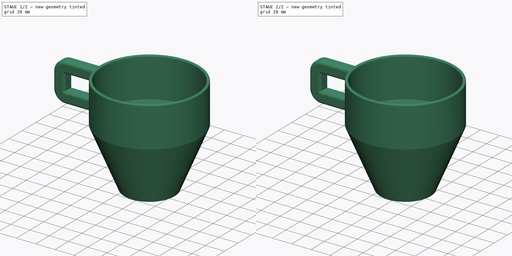
[diagram: build sequence overview — one tinted view per stage of 2, left to right]
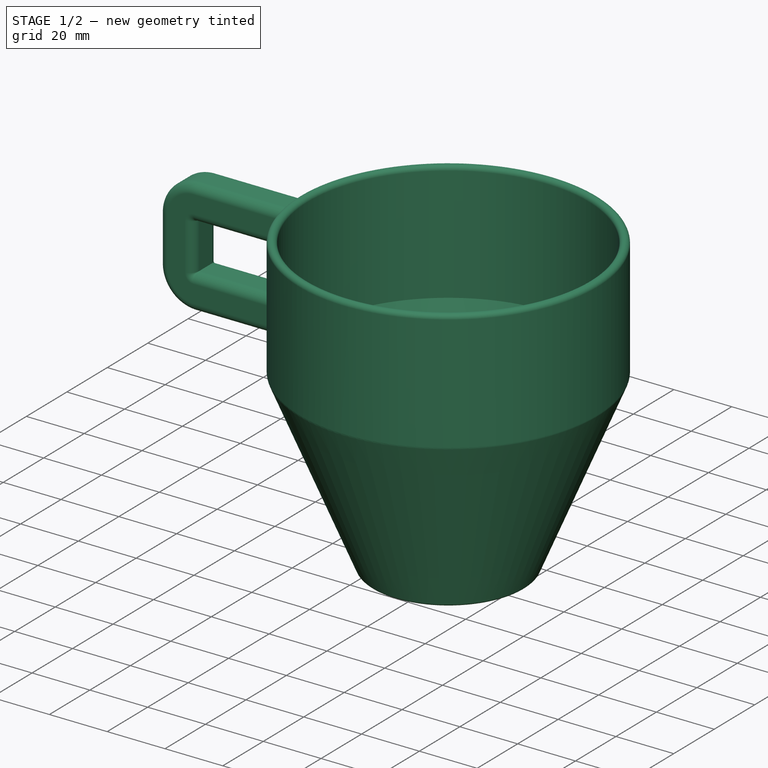
[diagram: stage 1 of 2 — iso view after this stage's code; geometry added in this stage tinted green]
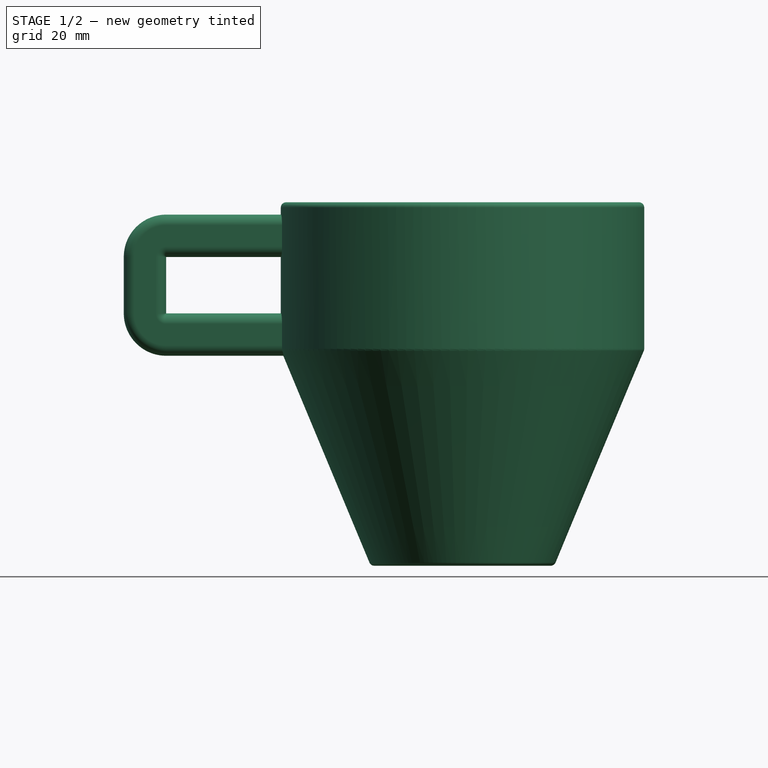
[diagram: stage 1 of 2 — front view after this stage's code; geometry added in this stage tinted green]
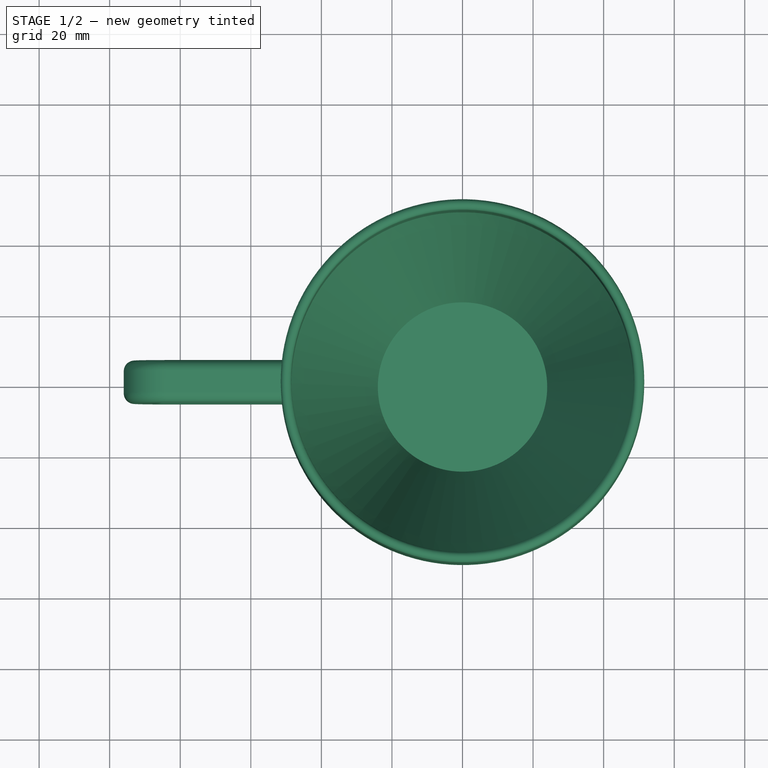
[diagram: stage 1 of 2 — top view after this stage's code; geometry added in this stage tinted green]
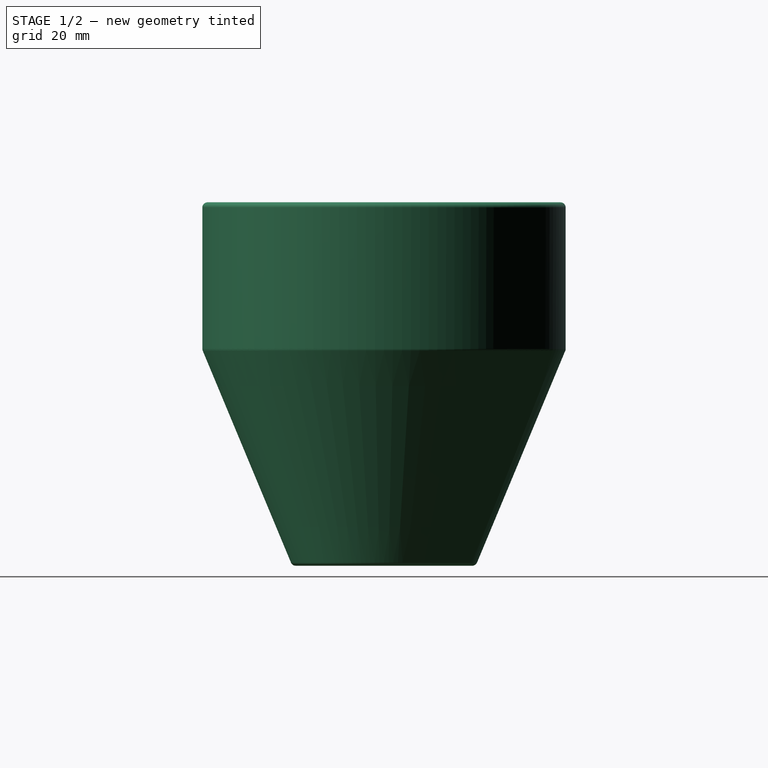
[diagram: stage 1 of 2 — right view after this stage's code; geometry added in this stage tinted green]
FCSTD DOCUMENT  (FreeCAD 1.2R20251216 (Git shallow))
Label: lesson12
License: All rights reserved
objects: Sketcher::SketchObject×3, App::Point×1, PartDesign::Revolution×1, PartDesign::AdditivePipe×1, PartDesign::Fillet×1, PartDesign::Body×1
note: 16 computed .brp shape members not serialized (recipe doc carries the construction recipe); baked Part::Feature solids carry a one-line shape summary decoded from their .brp

FEATURE [App::Point] Origin001
  Role = Origin
FEATURE [Sketcher::SketchObject] Sketch
  ArcFitTolerance = 1e-06
  AttachmentSupport = -> [Origin]
  ExternalTypes = [0]
  FullyConstrained = false
  MakeInternals = false
  MapMode = 5
  Placement = pos=(0,0,0) rot=(1,0,0;1.5708rad)
  sketch-geometry (15):
    g0: LineSegment [constr] StartX=0 StartY=1.5 StartZ=0 EndX=-25 EndY=1.5 EndZ=0
    g1: LineSegment [constr] StartX=-25 StartY=1.5 StartZ=0 EndX=-50 EndY=61.5 EndZ=0
    g2: LineSegment [constr] StartX=-50 StartY=61.5 StartZ=0 EndX=-50 EndY=101.5 EndZ=0
    g3: ArcOfCircle CenterX=-50 CenterY=101.5 CenterZ=0 NormalX=0 NormalY=0 NormalZ=1 AngleXU=-1.5708 Radius=1.5 StartAngle=1.5708 EndAngle=4.71239
    g4: LineSegment StartX=-48.5 StartY=61.8 StartZ=0 EndX=-48.5 EndY=101.5 EndZ=0
    g5: LineSegment StartX=-24 StartY=3 StartZ=0 EndX=-48.5 EndY=61.8 EndZ=0
    g6: LineSegment StartX=0 StartY=3 StartZ=0 EndX=-24 EndY=3 EndZ=0
    g7: LineSegment StartX=0 StartY=0 StartZ=0 EndX=-25 EndY=1.092e-13 EndZ=0
    g8: ArcOfCircle CenterX=-25 CenterY=1.5 CenterZ=0 NormalX=0 NormalY=0 NormalZ=1 AngleXU=0 Radius=1.5 StartAngle=3.53638 EndAngle=4.71239
    g9: LineSegment StartX=-26.3846 StartY=0.923077 StartZ=0 EndX=-51.3846 EndY=60.9231 EndZ=0
    g10: ArcOfCircle CenterX=-50 CenterY=61.5 CenterZ=0 NormalX=0 NormalY=0 NormalZ=1 AngleXU=-1.17601 Radius=1.5 StartAngle=4.3176 EndAngle=4.71239
    g11: LineSegment StartX=-51.5 StartY=61.5 StartZ=0 EndX=-51.5 EndY=101.5 EndZ=0
    g12: LineSegment [constr] StartX=-25.8237 StartY=7.37695 StartZ=0 EndX=-27.2083 EndY=6.80003 EndZ=0
    g13: LineSegment [constr] StartX=-0.000906252 StartY=3 StartZ=0 EndX=-0.000906252 EndY=1.5 EndZ=0
    g14: LineSegment StartX=0 StartY=3 StartZ=0 EndX=0 EndY=0 EndZ=0
  constraints (39):
    c: PointOnObject(g0,g-2)
    c: Horizontal(g0)
    c: Coincident(g0,g1)
    c: Coincident(g1,g2)
    c: Vertical(g2)
    c: Distance(g2,g-2) = 50
    c: DistanceY(g2,g2) = 40
    c: DistanceY(g1,g1) = 60
    c: DistanceX(g0,g0) = 25
    c: Tangent(g3,g4) = -1.5708
    c: Tangent(g3,g11) = 1.5708
    c: Coincident(g4,g5)
    c: Coincident(g5,g6)
    c: Tangent(g7,g8) = 1.5708
    c: Tangent(g8,g9) = 1.5708
    c: Tangent(g9,g10) = 1.5708
    c: Tangent(g10,g11) = 1.5708
    c: Perpendicular(g12,g5)
    c: PointOnObject(g12,g5)
    c: PointOnObject(g12,g1)
    c: Perpendicular(g13,g6)
    c: PointOnObject(g13,g6)
    c: PointOnObject(g13,g0)
    c: Parallel(g11,g2)
    c: Coincident(g3,g2)
    c: Parallel(g4,g2)
    c: Parallel(g5,g1)
    c: Parallel(g6,g0)
    c: Equal(g13,g12)
    c: Parallel(g7,g0)
    c: Coincident(g8,g0)
    c: Parallel(g9,g1)
    c: Coincident(g10,g1)
    c: Distance(g12) = 1.5
    c: Coincident(g14,g6)
    c: Coincident(g14,g7)
    c: Vertical(g14)
    c: DistanceY(g7,g6) = 3
    c: Coincident(g7,g-1)
FEATURE [PartDesign::Revolution] Revolution
  Angle = 360
  Angle2 = 0
  Axis = (0,2e-16,1)
  Base = (0,0,0)
  Profile = -> Sketch
  ReferenceAxis = -> Sketch [V_Axis]
  Refine = true
  Suppressed = false
  Type = 0
FEATURE [Sketcher::SketchObject] Sketch001  label="HandlePath"
  ArcFitTolerance = 1e-06
  AttachmentSupport = -> [Origin]
  ExternalGeometry = -> [Sketch]
  ExternalTypes = [0,0]
  FullyConstrained = true
  MakeInternals = false
  MapMode = 5
  Placement = pos=(0,0,0) rot=(1,0,0;1.5708rad)
  sketch-geometry (8):
    g0: LineSegment StartX=-50 StartY=93.5 StartZ=0 EndX=-84 EndY=93.5 EndZ=0
    g1: LineSegment StartX=-90 StartY=87.5 StartZ=0 EndX=-90 EndY=71.5 EndZ=0
    g2: LineSegment StartX=-84 StartY=65.5 StartZ=0 EndX=-50 EndY=65.5 EndZ=0
    g3: LineSegment [constr] StartX=-50 StartY=93.5 StartZ=0 EndX=-50 EndY=101.5 EndZ=0
    g4: ArcOfCircle CenterX=-84 CenterY=87.5 CenterZ=0 NormalX=0 NormalY=0 NormalZ=1 AngleXU=0 Radius=6 StartAngle=1.5708 EndAngle=3.14159
    g5: GeomPoint [constr] X=-90 Y=93.5 Z=0
    g6: ArcOfCircle CenterX=-84 CenterY=71.5 CenterZ=0 NormalX=0 NormalY=0 NormalZ=1 AngleXU=0 Radius=6 StartAngle=3.14159 EndAngle=4.71239
    g7: GeomPoint [constr] X=-90 Y=65.5 Z=0
  constraints (20):
    c: Horizontal(g0)
    c: Vertical(g1)
    c: Horizontal(g2)
    c: Coincident(g3,g0)
    c: Vertical(g3)
    c: Symmetric(g-3,g-4,g3)
    c: Vertical(g2,g0)
    c: DistanceX(g5,g0) = 40
    c: DistanceY(g7,g5) = 28
    c: DistanceY(g3,g3) = 8
    c: PointOnObject(g5,g0)
    c: PointOnObject(g5,g1)
    c: Tangent(g0,g4) = -1.5708
    c: Tangent(g1,g4) = -1.5708
    c: PointOnObject(g7,g1)
    c: PointOnObject(g7,g2)
    c: Tangent(g1,g6) = -1.5708
    c: Tangent(g2,g6) = -1.5708
    c: Radius(g6) = 6
    c: Equal(g6,g4)
FEATURE [Sketcher::SketchObject] Sketch002  label="Handle Profile"
  ArcFitTolerance = 1e-06
  AttachmentSupport = -> [Sketch001]
  ExternalTypes = [0]
  FullyConstrained = true
  MakeInternals = false
  MapMode = 1
  Placement = pos=(-50,2.08e-14,93.5) rot=(0.57735,0.57735,0.57735;2.0944rad)
  sketch-geometry (10):
    g0: LineSegment StartX=-6 StartY=3 StartZ=0 EndX=-6 EndY=-3 EndZ=0
    g1: LineSegment StartX=-3 StartY=-6 StartZ=0 EndX=3 EndY=-6 EndZ=0
    g2: LineSegment StartX=6 StartY=-3 StartZ=0 EndX=6 EndY=3 EndZ=0
    g3: LineSegment StartX=3 StartY=6 StartZ=0 EndX=-3 EndY=6 EndZ=0
    g4: ArcOfCircle CenterX=-3 CenterY=3 CenterZ=0 NormalX=0 NormalY=0 NormalZ=1 AngleXU=0 Radius=3 StartAngle=1.5708 EndAngle=3.14159
    g5: ArcOfCircle CenterX=-3 CenterY=-3 CenterZ=0 NormalX=0 NormalY=0 NormalZ=1 AngleXU=0 Radius=3 StartAngle=3.14159 EndAngle=4.71239
    g6: ArcOfCircle CenterX=3 CenterY=-3 CenterZ=0 NormalX=0 NormalY=0 NormalZ=1 AngleXU=0 Radius=3 StartAngle=4.71239 EndAngle=6.28319
    g7: ArcOfCircle CenterX=3 CenterY=3 CenterZ=0 NormalX=0 NormalY=0 NormalZ=1 AngleXU=0 Radius=3 StartAngle=0 EndAngle=1.5708
    g8: GeomPoint [constr] X=6 Y=-6 Z=0
    g9: GeomPoint [constr] X=0 Y=0 Z=0
  constraints (22):
    c: Tangent(g0,g4) = -1.5708
    c: Tangent(g0,g5) = -1.5708
    c: Tangent(g1,g5) = -1.5708
    c: Tangent(g1,g6) = -1.5708
    c: Tangent(g2,g6) = -1.5708
    c: Tangent(g2,g7) = -1.5708
    c: Tangent(g3,g7) = -1.5708
    c: Tangent(g3,g4) = -1.5708
    c: Vertical(g0)
    c: Vertical(g2)
    c: Horizontal(g1)
    c: Horizontal(g3)
    c: Equal(g4,g5)
    c: Equal(g5,g6)
    c: Equal(g6,g7)
    c: Symmetric(g2,g0,g9)
    c: PointOnObject(g8,g1)
    c: PointOnObject(g8,g2)
    c: Radius(g5) = 3
    c: Coincident(g9,g-1)
    c: DistanceY(g1,g3) = 12
    c: DistanceX(g0,g2) = 12
FEATURE [PartDesign::AdditivePipe] AdditivePipe
  AuxiliaryCurvilinear = true
  AuxiliarySpineTangent = false
  BaseFeature = -> Revolution
  Binormal = (0,0,0)
  Mode = 0
  Profile = -> Sketch002
  Refine = true
  Spine = -> Sketch001 [Edge3,Edge2,Edge1,Edge4,Edge5]
  SpineTangent = false
  Suppressed = false
  Transformation = 0
  Transition = 0
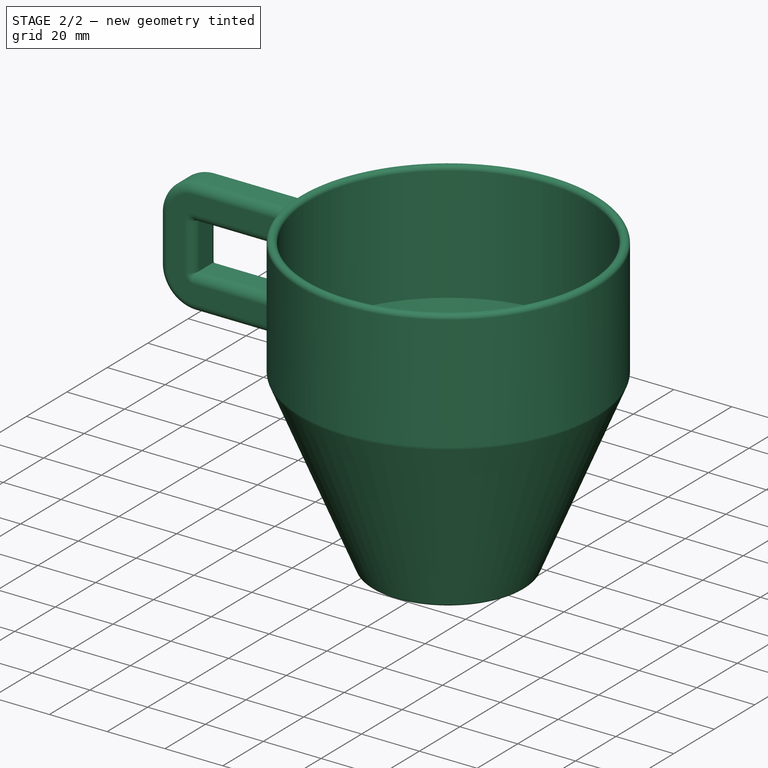
[diagram: stage 2 of 2 — iso view after this stage's code; geometry added in this stage tinted green]
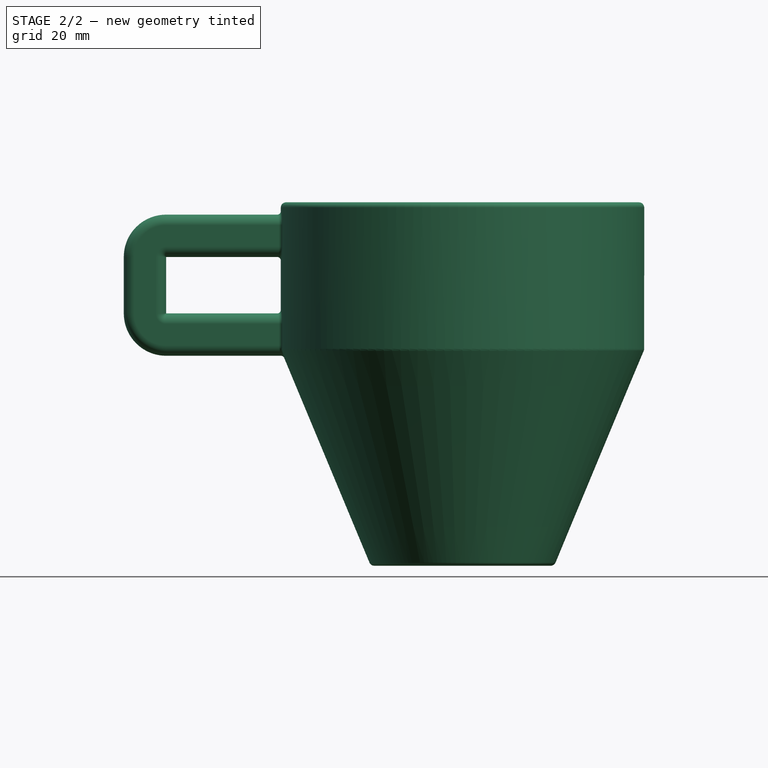
[diagram: stage 2 of 2 — front view after this stage's code; geometry added in this stage tinted green]
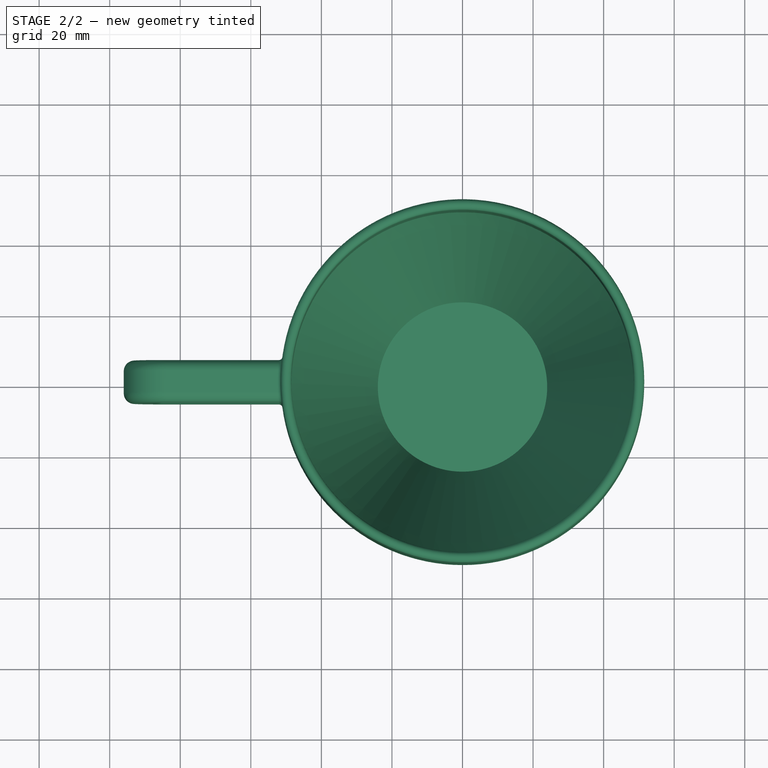
[diagram: stage 2 of 2 — top view after this stage's code; geometry added in this stage tinted green]
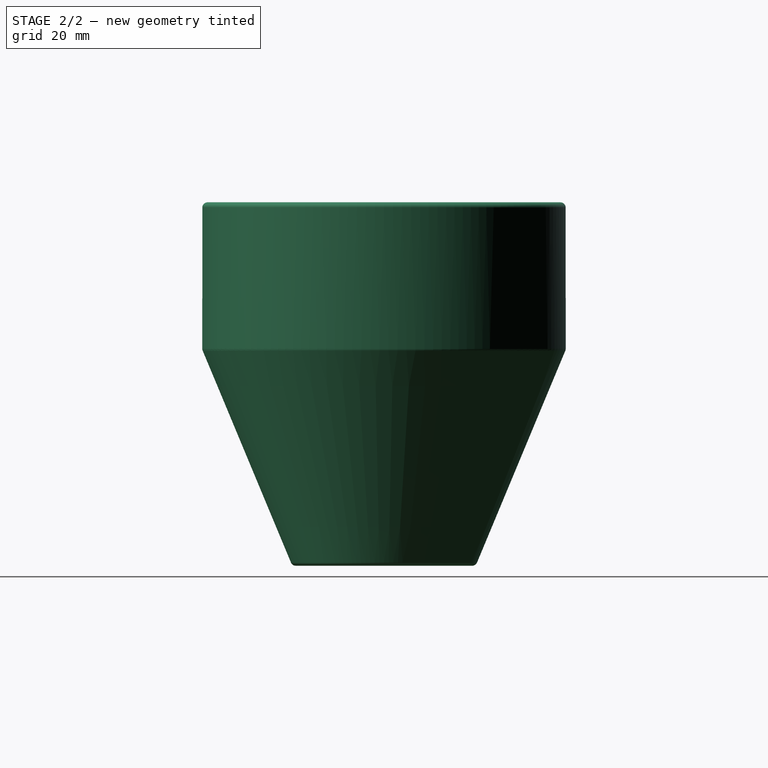
[diagram: stage 2 of 2 — right view after this stage's code; geometry added in this stage tinted green]
FEATURE [PartDesign::Fillet] Fillet
  Base = -> AdditivePipe [Edge14,Edge32]
  BaseFeature = -> AdditivePipe
  Radius = 1
  Refine = true
  SupportTransform = false
  Suppressed = false
  UseAllEdges = false
FEATURE [PartDesign::Body] Body
  AllowCompound = true
  Group = -> [Sketch,Revolution,Sketch001,Sketch002,AdditivePipe,Fillet]
  Origin = -> Origin
  Tip = -> Fillet
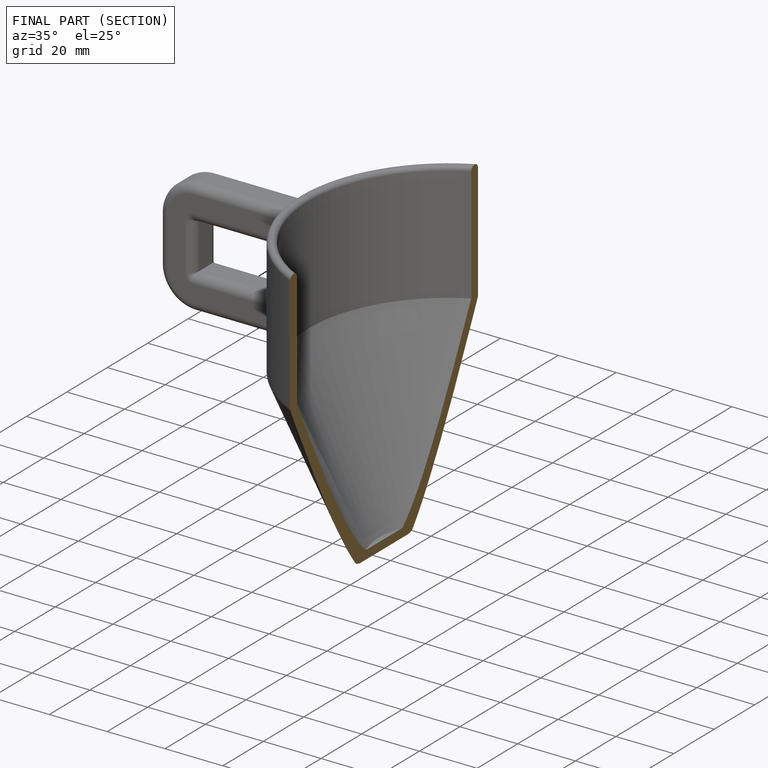
[diagram: finished part — half-section view (interior)]
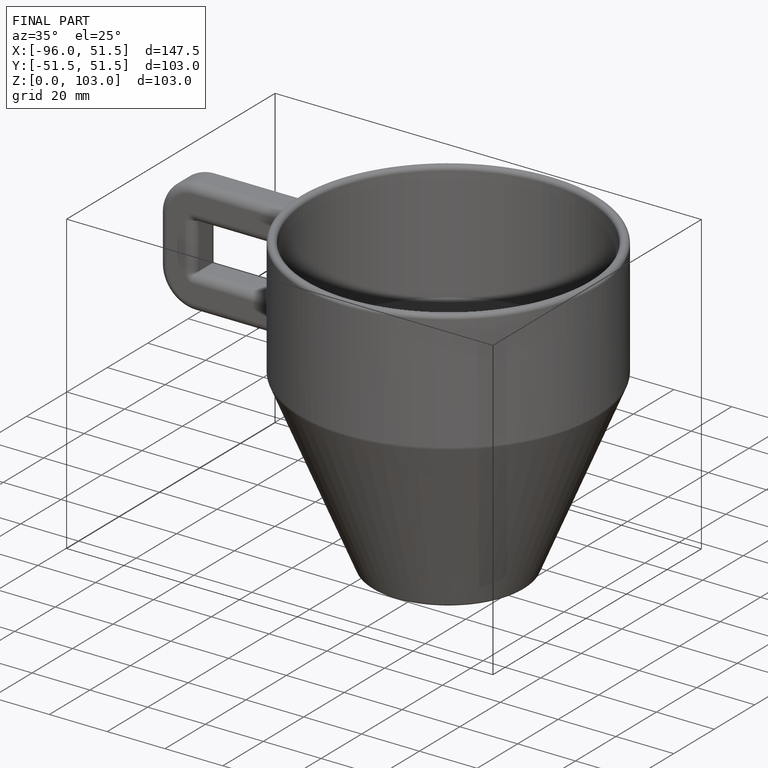
[diagram: finished part — iso view with bounding-box wireframe]
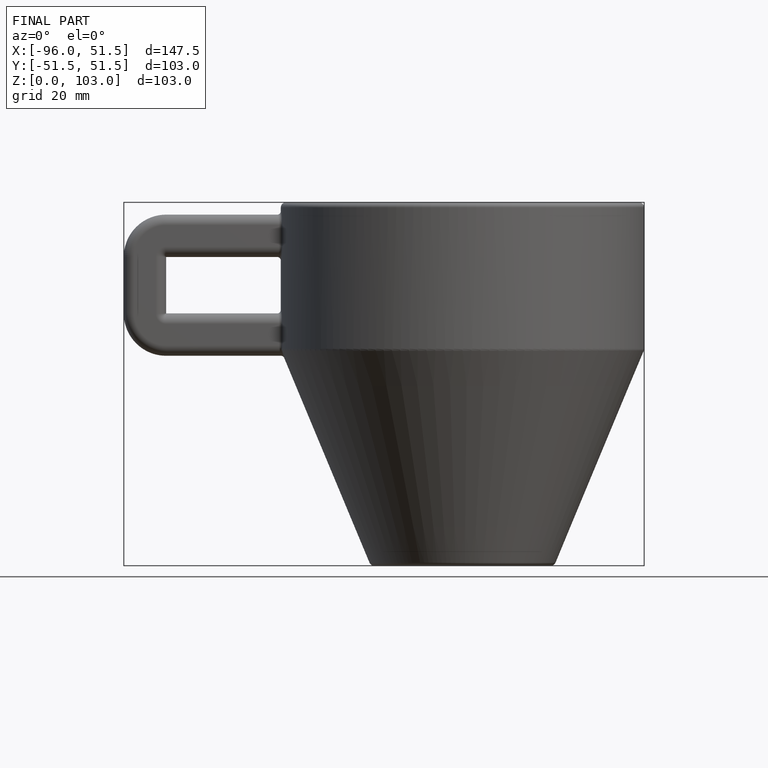
[diagram: finished part — front view with bounding-box wireframe]
